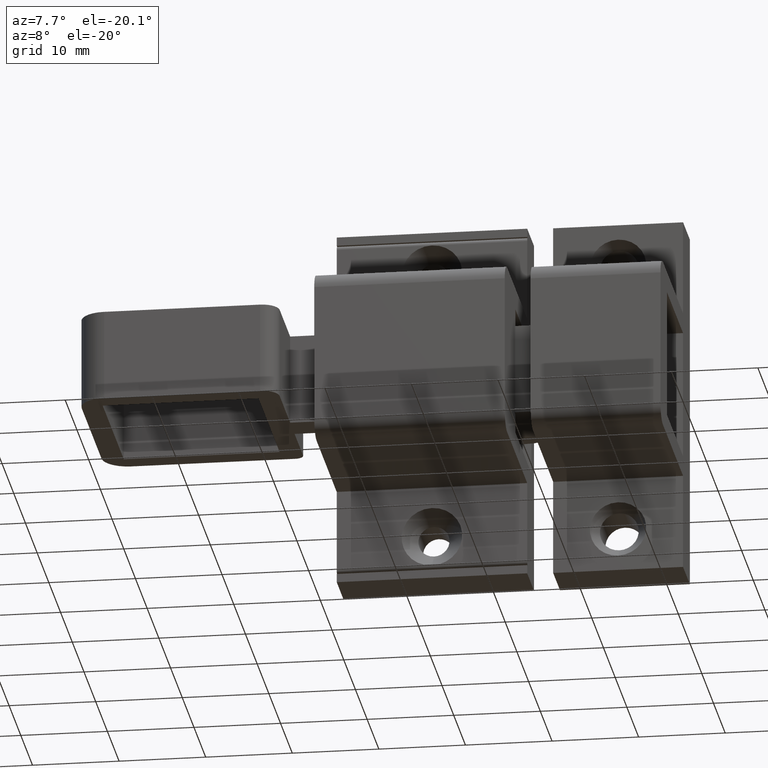
[diagram: clean part render]
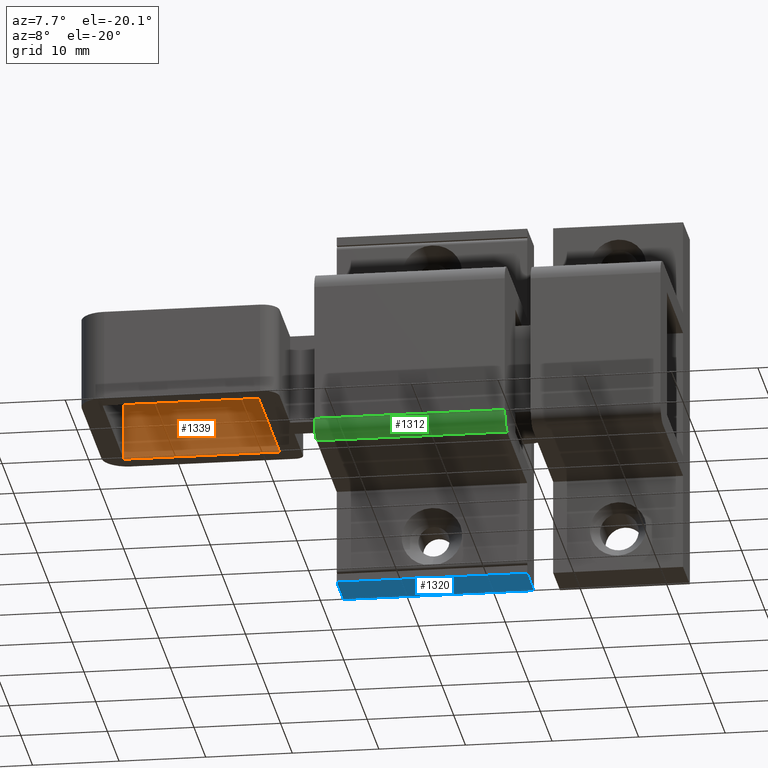
[diagram: same view with three faces highlighted in distinct colors, each labeled with its STEP entity id]
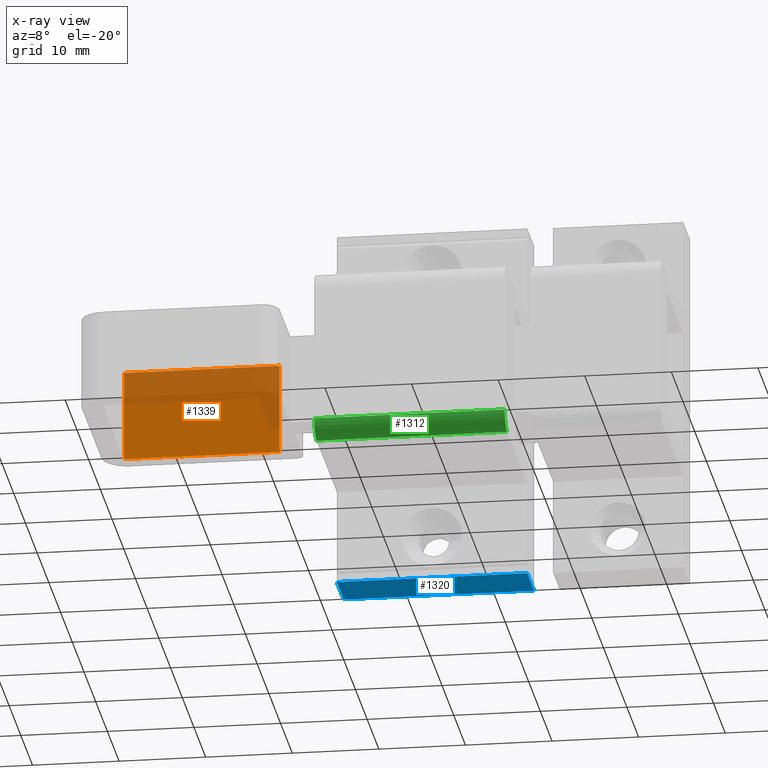
[diagram: x-ray of the same camera — body ghosted, the three highlighted faces saturated]
A machine part, auxiliary view with three faces highlighted in distinct colors.
The next image is the same camera in x-ray (body ghosted, the three faces saturated) — at least one of them is partly hidden behind the body in this view.
Their STEP definitions:

[orange] entity #1339 — the highlighted planar face has unit normal (0, -1, -0).
#84=PLANE('',#1510);
#146=FACE_OUTER_BOUND('',#224,.T.);
#224=EDGE_LOOP('',(#1160,#1161,#1162,#1163));
#348=LINE('',#2195,#496);
#351=LINE('',#2201,#499);
#352=LINE('',#2203,#500);
#353=LINE('',#2204,#501);
#496=VECTOR('',#1807,10.5);
#499=VECTOR('',#1812,18.);
#500=VECTOR('',#1813,10.5);
#501=VECTOR('',#1814,18.);
#670=VERTEX_POINT('',#2192);
#671=VERTEX_POINT('',#2194);
#673=VERTEX_POINT('',#2200);
#674=VERTEX_POINT('',#2202);
#839=EDGE_CURVE('',#670,#671,#348,.T.);
#842=EDGE_CURVE('',#670,#673,#351,.T.);
#843=EDGE_CURVE('',#673,#674,#352,.T.);
#844=EDGE_CURVE('',#671,#674,#353,.T.);
#1160=ORIENTED_EDGE('',*,*,#842,.T.);
#1161=ORIENTED_EDGE('',*,*,#843,.T.);
#1162=ORIENTED_EDGE('',*,*,#844,.F.);
#1163=ORIENTED_EDGE('',*,*,#839,.F.);
#1339=ADVANCED_FACE('',(#146),#84,.T.);
#1510=AXIS2_PLACEMENT_3D('',#2199,#1810,#1811);
#1807=DIRECTION('',(1.,0.,0.));
#1810=DIRECTION('center_axis',(0.,0.,1.));
#1811=DIRECTION('ref_axis',(0.,-1.,0.));
#1812=DIRECTION('',(0.,-1.,0.));
#1813=DIRECTION('',(1.,0.,0.));
#1814=DIRECTION('',(0.,-1.,0.));
#2192=CARTESIAN_POINT('',(-5.25,43.,3.50000000000001));
#2194=CARTESIAN_POINT('',(5.25,43.,3.50000000000001));
#2195=CARTESIAN_POINT('',(-5.25,43.,3.50000000000001));
#2199=CARTESIAN_POINT('Origin',(-5.25,43.,3.50000000000001));
#2200=CARTESIAN_POINT('',(-5.25,25.,3.5));
#2201=CARTESIAN_POINT('',(-5.25,43.,3.50000000000001));
#2202=CARTESIAN_POINT('',(5.25,25.,3.5));
#2203=CARTESIAN_POINT('',(-5.25,25.,3.5));
#2204=CARTESIAN_POINT('',(5.25,43.,3.50000000000001));

[blue] entity #1320 — the highlighted planar face has unit normal (0, 0, -1).
#71=PLANE('',#1483);
#127=FACE_OUTER_BOUND('',#203,.T.);
#203=EDGE_LOOP('',(#1074,#1075,#1076,#1077));
#298=LINE('',#2070,#446);
#319=LINE('',#2120,#467);
#328=LINE('',#2138,#476);
#329=LINE('',#2140,#477);
#446=VECTOR('',#1683,10.);
#467=VECTOR('',#1720,10.);
#476=VECTOR('',#1733,10.);
#477=VECTOR('',#1736,10.);
#632=VERTEX_POINT('',#2067);
#633=VERTEX_POINT('',#2069);
#653=VERTEX_POINT('',#2117);
#654=VERTEX_POINT('',#2119);
#777=EDGE_CURVE('',#633,#632,#298,.T.);
#802=EDGE_CURVE('',#654,#653,#319,.T.);
#812=EDGE_CURVE('',#632,#654,#328,.T.);
#813=EDGE_CURVE('',#653,#633,#329,.T.);
#1074=ORIENTED_EDGE('',*,*,#777,.T.);
#1075=ORIENTED_EDGE('',*,*,#812,.T.);
#1076=ORIENTED_EDGE('',*,*,#802,.T.);
#1077=ORIENTED_EDGE('',*,*,#813,.T.);
#1320=ADVANCED_FACE('',(#127),#71,.T.);
#1483=AXIS2_PLACEMENT_3D('',#2139,#1734,#1735);
#1683=DIRECTION('',(0.,0.,1.));
#1720=DIRECTION('',(0.,0.,-1.));
#1733=DIRECTION('',(0.,1.,0.));
#1734=DIRECTION('center_axis',(-1.,0.,0.));
#1735=DIRECTION('ref_axis',(0.,0.,1.));
#1736=DIRECTION('',(0.,-1.,0.));
#2067=CARTESIAN_POINT('',(-21.,3.552714E-15,5.8));
#2069=CARTESIAN_POINT('',(-21.,3.552714E-15,-3.33066907387547E-15));
#2070=CARTESIAN_POINT('',(-21.,3.552714E-15,-3.33066907387547E-15));
#2117=CARTESIAN_POINT('',(-21.,22.,-3.33066907387547E-15));
#2119=CARTESIAN_POINT('',(-21.,22.,5.8));
#2120=CARTESIAN_POINT('',(-21.,22.,5.8));
#2138=CARTESIAN_POINT('',(-21.,3.552714E-15,5.8));
#2139=CARTESIAN_POINT('Origin',(-21.,11.,2.9));
#2140=CARTESIAN_POINT('',(-21.,22.,-3.33066907387547E-15));

[green] entity #1312 — the highlighted cylindrical surface (edge-blend (fillet) strip) has radius 2 mm, axis along (1, 0, 0).
#119=FACE_OUTER_BOUND('',#193,.T.);
#193=EDGE_LOOP('',(#1010,#1011,#1012,#1013));
#289=LINE('',#2048,#437);
#290=LINE('',#2051,#438);
#437=VECTOR('',#1666,10.);
#438=VECTOR('',#1669,10.);
#557=CIRCLE('',#1468,2.);
#558=CIRCLE('',#1469,2.);
#622=VERTEX_POINT('',#2044);
#623=VERTEX_POINT('',#2045);
#624=VERTEX_POINT('',#2047);
#625=VERTEX_POINT('',#2049);
#765=EDGE_CURVE('',#622,#623,#557,.T.);
#766=EDGE_CURVE('',#623,#624,#289,.T.);
#767=EDGE_CURVE('',#624,#625,#558,.T.);
#768=EDGE_CURVE('',#625,#622,#290,.T.);
#1010=ORIENTED_EDGE('',*,*,#765,.T.);
#1011=ORIENTED_EDGE('',*,*,#766,.T.);
#1012=ORIENTED_EDGE('',*,*,#767,.T.);
#1013=ORIENTED_EDGE('',*,*,#768,.T.);
#1280=CYLINDRICAL_SURFACE('',#1467,2.);
#1312=ADVANCED_FACE('',(#119),#1280,.T.);
#1467=AXIS2_PLACEMENT_3D('',#2043,#1662,#1663);
#1468=AXIS2_PLACEMENT_3D('',#2046,#1664,#1665);
#1469=AXIS2_PLACEMENT_3D('',#2050,#1667,#1668);
#1662=DIRECTION('center_axis',(0.,-1.,0.));
#1663=DIRECTION('ref_axis',(-0.707106781186547,0.,0.707106781186548));
#1664=DIRECTION('center_axis',(0.,1.,0.));
#1665=DIRECTION('ref_axis',(-0.707106781186547,0.,0.707106781186548));
#1666=DIRECTION('',(0.,1.,0.));
#1667=DIRECTION('center_axis',(0.,-1.,0.));
#1668=DIRECTION('ref_axis',(-0.707106781186547,0.,0.707106781186548));
#1669=DIRECTION('',(0.,-1.,0.));
#2043=CARTESIAN_POINT('Origin',(-8.,-1.776357E-15,23.));
#2044=CARTESIAN_POINT('',(-10.,0.,23.));
#2045=CARTESIAN_POINT('',(-8.,-3.552714E-15,25.));
#2046=CARTESIAN_POINT('Origin',(-8.,-3.552714E-15,23.));
#2047=CARTESIAN_POINT('',(-8.,22.,25.));
#2048=CARTESIAN_POINT('',(-8.,-1.776357E-15,25.));
#2049=CARTESIAN_POINT('',(-10.,22.,23.));
#2050=CARTESIAN_POINT('Origin',(-8.,22.,23.));
#2051=CARTESIAN_POINT('',(-10.,-1.776357E-15,23.));